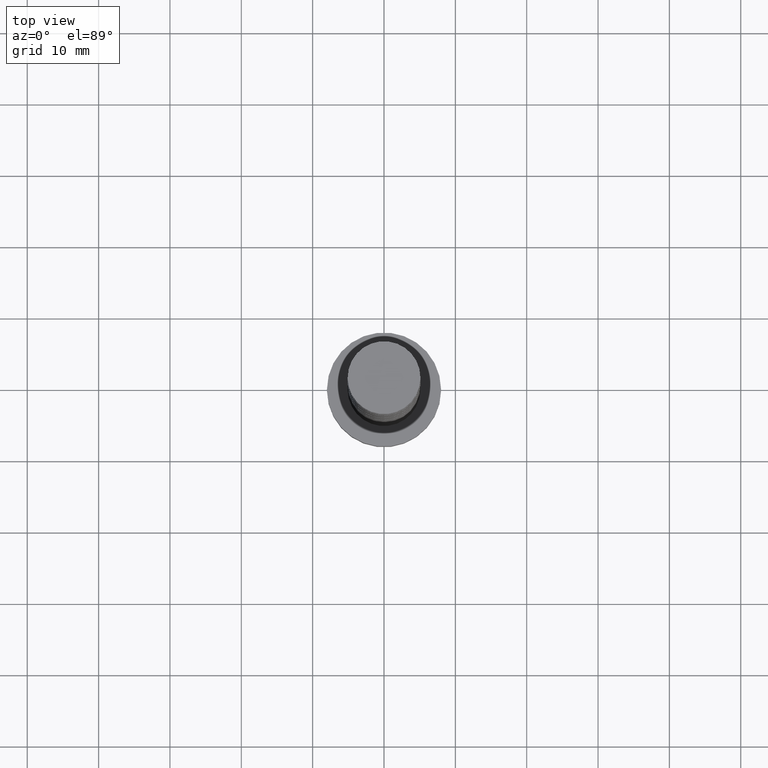
[diagram: clean part render]
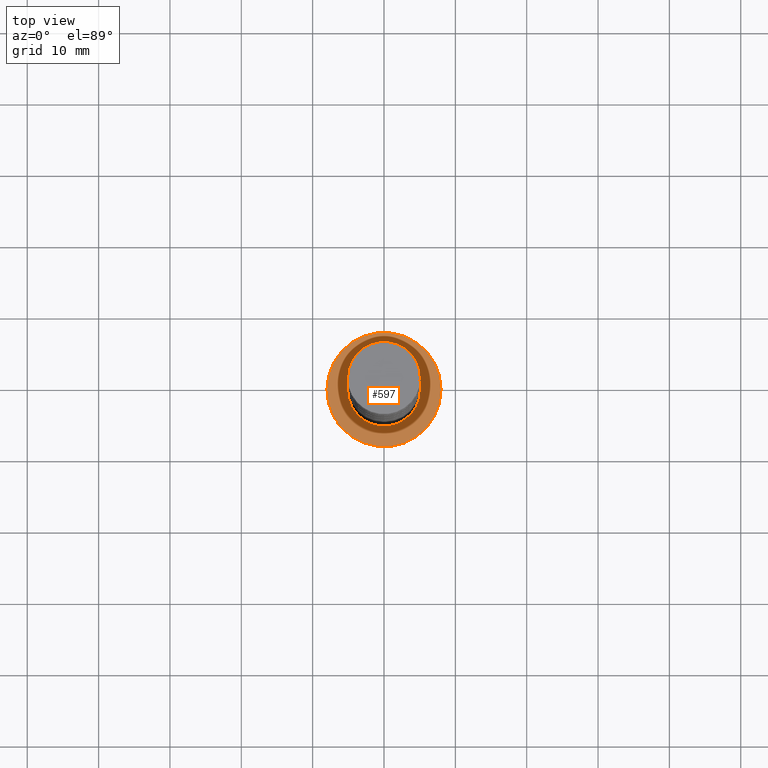
[diagram: same view with one face highlighted and labeled with its STEP entity id]
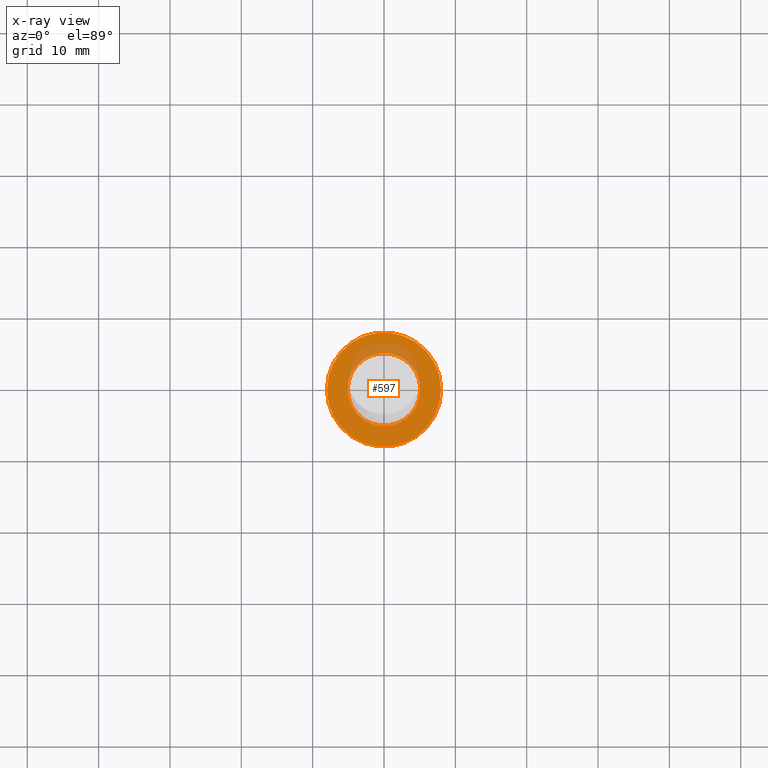
[diagram: x-ray of the same camera — body ghosted, the highlighted face saturated]
A machine part, top view. The second image highlights one B-rep face of the part: STEP entity #597.
The next image is the same camera in x-ray: the body ghosted, the highlighted face saturated — about 14% of this face is hidden behind the body in this view.
In plain terms, the highlighted planar face has unit normal (0, 0, 1).
Its self-contained STEP definition (entity closure, byte-faithful):
#17 = CARTESIAN_POINT ( 'NONE',  ( -8.000000000000000000, 0.000000000000000000, 5.000000000000000000 ) ) ;
#18 = CARTESIAN_POINT ( 'NONE',  ( 5.099999999999999645, 6.245698675651500839E-16, 5.000000000000000000 ) ) ;
#24 = AXIS2_PLACEMENT_3D ( 'NONE', #231, #1165, #354 ) ;
#55 = DIRECTION ( 'NONE',  ( 1.000000000000000000, 0.000000000000000000, 0.000000000000000000 ) ) ;
#75 = DIRECTION ( 'NONE',  ( 0.000000000000000000, 0.000000000000000000, 1.000000000000000000 ) ) ;
#82 = CIRCLE ( 'NONE', #387, 8.000000000000000000 ) ;
#106 = CARTESIAN_POINT ( 'NONE',  ( -5.099999999999999645, 0.000000000000000000, 5.000000000000000000 ) ) ;
#158 = EDGE_CURVE ( 'NONE', #1089, #1417, #476, .T. ) ;
#202 = ORIENTED_EDGE ( 'NONE', *, *, #158, .T. ) ;
#208 = CARTESIAN_POINT ( 'NONE',  ( 0.000000000000000000, 0.000000000000000000, 5.000000000000000000 ) ) ;
#231 = CARTESIAN_POINT ( 'NONE',  ( 0.000000000000000000, 0.000000000000000000, 5.000000000000000000 ) ) ;
#321 = AXIS2_PLACEMENT_3D ( 'NONE', #382, #509, #55 ) ;
#325 = FACE_OUTER_BOUND ( 'NONE', #1454, .T. ) ;
#340 = DIRECTION ( 'NONE',  ( 1.000000000000000000, 0.000000000000000000, 0.000000000000000000 ) ) ;
#347 = DIRECTION ( 'NONE',  ( 0.000000000000000000, 0.000000000000000000, 1.000000000000000000 ) ) ;
#354 = DIRECTION ( 'NONE',  ( 1.000000000000000000, 0.000000000000000000, 0.000000000000000000 ) ) ;
#373 = ORIENTED_EDGE ( 'NONE', *, *, #627, .T. ) ;
#382 = CARTESIAN_POINT ( 'NONE',  ( 0.000000000000000000, 0.000000000000000000, 5.000000000000000000 ) ) ;
#387 = AXIS2_PLACEMENT_3D ( 'NONE', #1131, #784, #767 ) ;
#461 = CIRCLE ( 'NONE', #321, 5.099999999999999645 ) ;
#474 = CARTESIAN_POINT ( 'NONE',  ( 8.000000000000000000, 9.797174393178825657E-16, 5.000000000000000000 ) ) ;
#476 = CIRCLE ( 'NONE', #24, 8.000000000000000000 ) ;
#509 = DIRECTION ( 'NONE',  ( 0.000000000000000000, 0.000000000000000000, 1.000000000000000000 ) ) ;
#536 = FACE_BOUND ( 'NONE', #1246, .T. ) ;
#569 = ORIENTED_EDGE ( 'NONE', *, *, #1261, .F. ) ;
#597 = ADVANCED_FACE ( 'NONE', ( #536, #325 ), #1447, .T. ) ;
#627 = EDGE_CURVE ( 'NONE', #1417, #1089, #82, .T. ) ;
#767 = DIRECTION ( 'NONE',  ( 1.000000000000000000, 0.000000000000000000, 0.000000000000000000 ) ) ;
#784 = DIRECTION ( 'NONE',  ( 0.000000000000000000, 0.000000000000000000, 1.000000000000000000 ) ) ;
#849 = CIRCLE ( 'NONE', #1333, 5.099999999999999645 ) ;
#1024 = CARTESIAN_POINT ( 'NONE',  ( 0.000000000000000000, 0.000000000000000000, 5.000000000000000000 ) ) ;
#1089 = VERTEX_POINT ( 'NONE', #17 ) ;
#1099 = DIRECTION ( 'NONE',  ( 1.000000000000000000, 0.000000000000000000, -0.000000000000000000 ) ) ;
#1131 = CARTESIAN_POINT ( 'NONE',  ( 0.000000000000000000, 0.000000000000000000, 5.000000000000000000 ) ) ;
#1160 = EDGE_CURVE ( 'NONE', #1459, #1189, #461, .T. ) ;
#1165 = DIRECTION ( 'NONE',  ( 0.000000000000000000, 0.000000000000000000, 1.000000000000000000 ) ) ;
#1189 = VERTEX_POINT ( 'NONE', #106 ) ;
#1246 = EDGE_LOOP ( 'NONE', ( #569, #1258 ) ) ;
#1258 = ORIENTED_EDGE ( 'NONE', *, *, #1160, .F. ) ;
#1261 = EDGE_CURVE ( 'NONE', #1189, #1459, #849, .T. ) ;
#1333 = AXIS2_PLACEMENT_3D ( 'NONE', #1024, #347, #340 ) ;
#1417 = VERTEX_POINT ( 'NONE', #474 ) ;
#1447 = PLANE ( 'NONE',  #1450 ) ;
#1450 = AXIS2_PLACEMENT_3D ( 'NONE', #208, #75, #1099 ) ;
#1454 = EDGE_LOOP ( 'NONE', ( #202, #373 ) ) ;
#1459 = VERTEX_POINT ( 'NONE', #18 ) ;